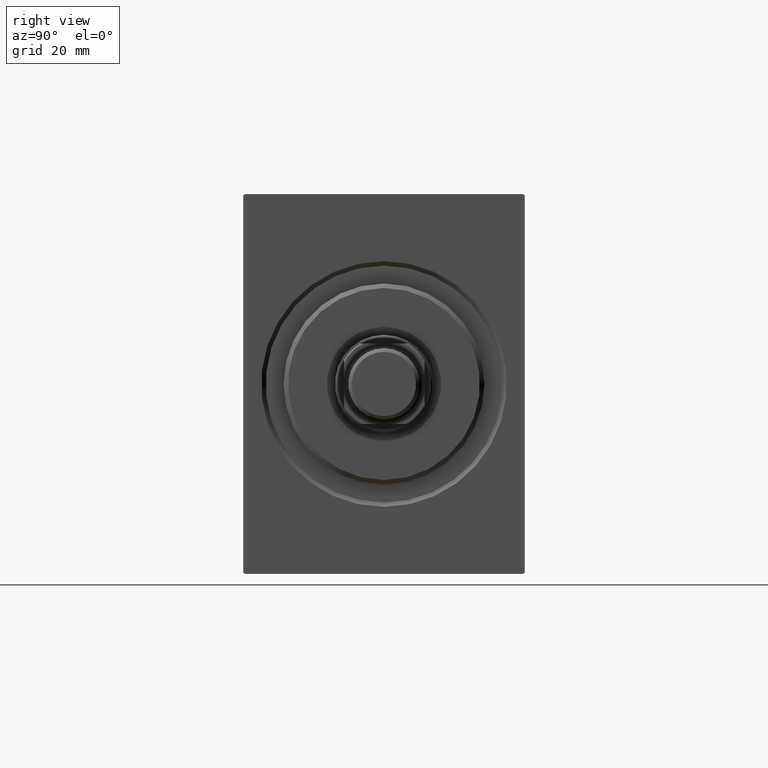
[diagram: clean part render]
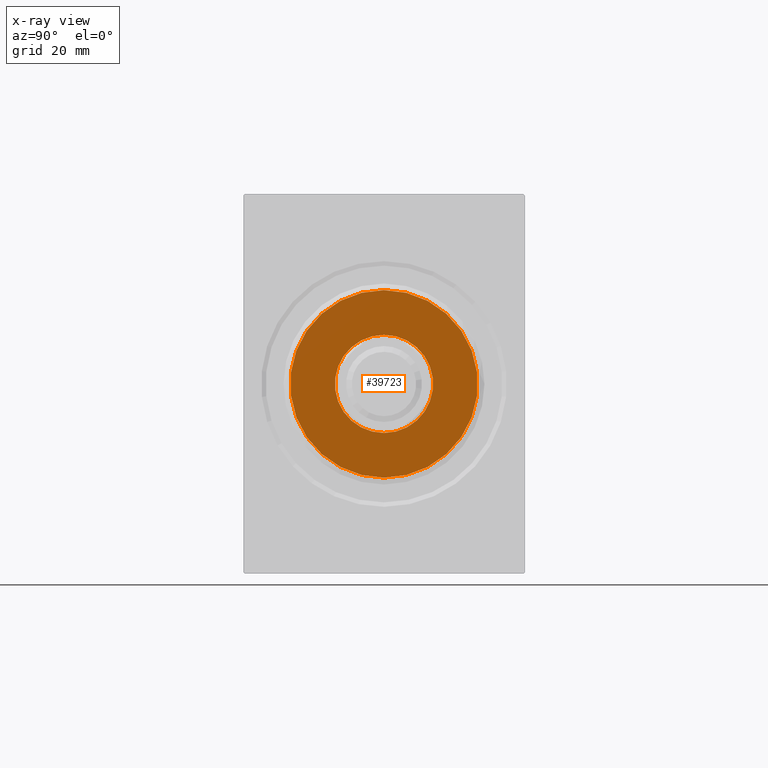
[diagram: x-ray — body ghosted, one internal face saturated and labeled with its STEP entity id]
A machine part, right view, then the same camera in x-ray: the body is ghosted and one INTERNAL B-rep face — a face not visible from any outside direction — is saturated and labeled: STEP entity #39723.
In plain terms, the highlighted planar face has unit normal (-1, 0, 0).
Its self-contained STEP definition (entity closure, byte-faithful):
#1600 = AXIS2_PLACEMENT_3D ( 'NONE', #32606, #22589, #12570 ) ;
#1835 = CARTESIAN_POINT ( 'NONE',  ( -18.00000000000000000, 0.000000000000000000, 0.000000000000000000 ) ) ;
#1860 = EDGE_LOOP ( 'NONE', ( #25066, #13963 ) ) ;
#3061 = VERTEX_POINT ( 'NONE', #22818 ) ;
#3293 = ORIENTED_EDGE ( 'NONE', *, *, #35014, .T. ) ;
#3421 = DIRECTION ( 'NONE',  ( -1.000000000000000000, 0.000000000000000000, 0.000000000000000000 ) ) ;
#4083 = EDGE_CURVE ( 'NONE', #3061, #10223, #11848, .T. ) ;
#8290 = DIRECTION ( 'NONE',  ( 0.000000000000000000, 0.000000000000000000, -1.000000000000000000 ) ) ;
#9566 = CARTESIAN_POINT ( 'NONE',  ( -18.00000000000000000, 1.347111479062088405E-15, 11.00000000000000000 ) ) ;
#9806 = CARTESIAN_POINT ( 'NONE',  ( -18.00000000000000000, 2.571758278209441661E-15, 21.00000000000000000 ) ) ;
#10223 = VERTEX_POINT ( 'NONE', #9566 ) ;
#11127 = CARTESIAN_POINT ( 'NONE',  ( -18.00000000000000000, 0.000000000000000000, 0.000000000000000000 ) ) ;
#11839 = AXIS2_PLACEMENT_3D ( 'NONE', #22976, #32133, #39083 ) ;
#11848 = CIRCLE ( 'NONE', #23662, 11.00000000000000000 ) ;
#12570 = DIRECTION ( 'NONE',  ( 0.000000000000000000, 0.000000000000000000, 1.000000000000000000 ) ) ;
#13435 = CARTESIAN_POINT ( 'NONE',  ( -18.00000000000000000, 0.000000000000000000, 0.000000000000000000 ) ) ;
#13963 = ORIENTED_EDGE ( 'NONE', *, *, #25396, .T. ) ;
#16824 = EDGE_CURVE ( 'NONE', #18346, #34625, #40118, .T. ) ;
#18346 = VERTEX_POINT ( 'NONE', #32301 ) ;
#20178 = DIRECTION ( 'NONE',  ( 0.000000000000000000, 0.000000000000000000, 1.000000000000000000 ) ) ;
#22589 = DIRECTION ( 'NONE',  ( -1.000000000000000000, 0.000000000000000000, 0.000000000000000000 ) ) ;
#22818 = CARTESIAN_POINT ( 'NONE',  ( -18.00000000000000000, 0.000000000000000000, -11.00000000000000000 ) ) ;
#22976 = CARTESIAN_POINT ( 'NONE',  ( -18.00000000000000000, 0.000000000000000000, 0.000000000000000000 ) ) ;
#23662 = AXIS2_PLACEMENT_3D ( 'NONE', #1835, #27973, #31038 ) ;
#24845 = DIRECTION ( 'NONE',  ( 1.000000000000000000, 0.000000000000000000, 0.000000000000000000 ) ) ;
#25066 = ORIENTED_EDGE ( 'NONE', *, *, #16824, .T. ) ;
#25396 = EDGE_CURVE ( 'NONE', #34625, #18346, #36178, .T. ) ;
#27335 = CIRCLE ( 'NONE', #37777, 11.00000000000000000 ) ;
#27973 = DIRECTION ( 'NONE',  ( 1.000000000000000000, 0.000000000000000000, 0.000000000000000000 ) ) ;
#28049 = FACE_BOUND ( 'NONE', #29891, .T. ) ;
#29891 = EDGE_LOOP ( 'NONE', ( #40255, #3293 ) ) ;
#31038 = DIRECTION ( 'NONE',  ( 0.000000000000000000, 0.000000000000000000, -1.000000000000000000 ) ) ;
#32133 = DIRECTION ( 'NONE',  ( -1.000000000000000000, 0.000000000000000000, 0.000000000000000000 ) ) ;
#32301 = CARTESIAN_POINT ( 'NONE',  ( -18.00000000000000000, 0.000000000000000000, -21.00000000000000000 ) ) ;
#32606 = CARTESIAN_POINT ( 'NONE',  ( -18.00000000000000000, 0.000000000000000000, 0.000000000000000000 ) ) ;
#34625 = VERTEX_POINT ( 'NONE', #9806 ) ;
#35014 = EDGE_CURVE ( 'NONE', #10223, #3061, #27335, .T. ) ;
#35651 = PLANE ( 'NONE',  #1600 ) ;
#36178 = CIRCLE ( 'NONE', #11839, 21.00000000000000000 ) ;
#37777 = AXIS2_PLACEMENT_3D ( 'NONE', #11127, #24845, #8290 ) ;
#39083 = DIRECTION ( 'NONE',  ( 0.000000000000000000, 0.000000000000000000, 1.000000000000000000 ) ) ;
#39439 = AXIS2_PLACEMENT_3D ( 'NONE', #13435, #3421, #20178 ) ;
#39723 = ADVANCED_FACE ( 'NONE', ( #28049, #41312 ), #35651, .T. ) ;
#40118 = CIRCLE ( 'NONE', #39439, 21.00000000000000000 ) ;
#40255 = ORIENTED_EDGE ( 'NONE', *, *, #4083, .T. ) ;
#41312 = FACE_OUTER_BOUND ( 'NONE', #1860, .T. ) ;